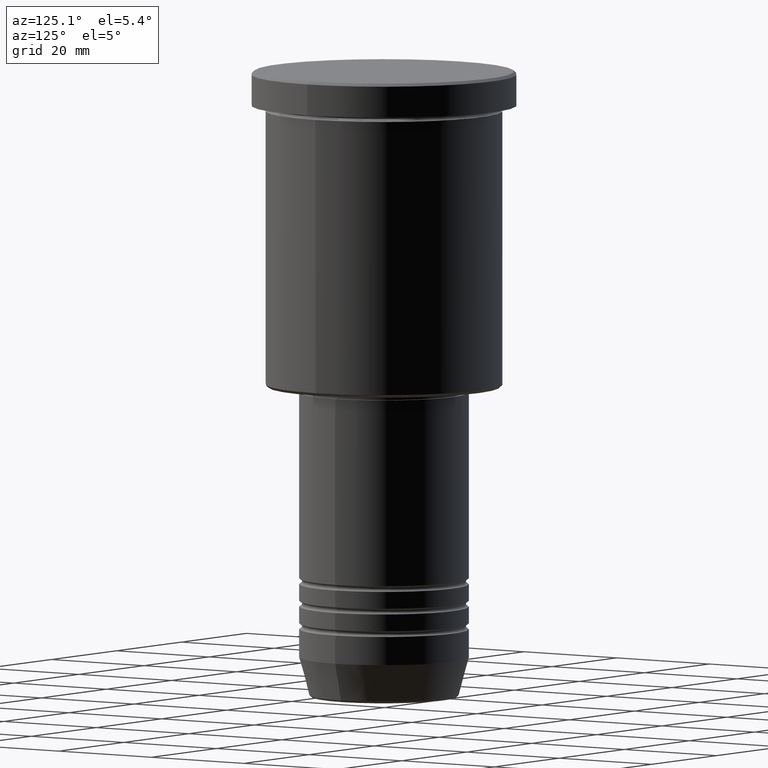
[diagram: clean part render]
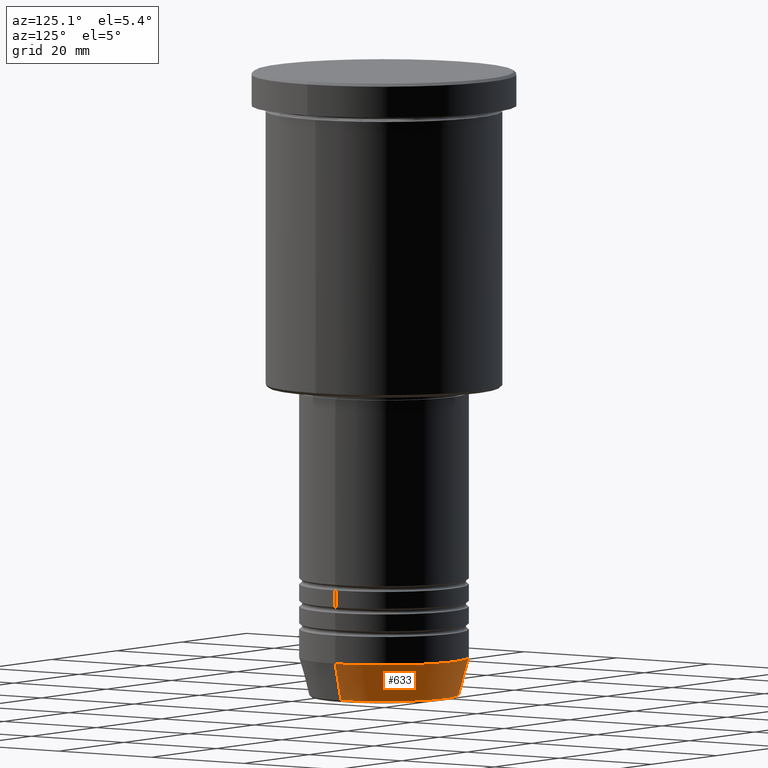
[diagram: same view with one face highlighted and labeled with its STEP entity id]
A machine part, auxiliary view. The second image highlights one B-rep face of the part: STEP entity #633.
In plain terms, the highlighted conical surface has half-angle 15 deg.
Its self-contained STEP definition (entity closure, byte-faithful):
#27 = CARTESIAN_POINT ( 'NONE',  ( -15.00000000000000000, 1.836970198721029589E-15, -104.0000000000000142 ) ) ;
#63 = ORIENTED_EDGE ( 'NONE', *, *, #138, .T. ) ;
#105 = CARTESIAN_POINT ( 'NONE',  ( 15.00000000000000000, 0.000000000000000000, -104.0000000000000142 ) ) ;
#131 = CIRCLE ( 'NONE', #652, 13.22365507213718594 ) ;
#133 = CONICAL_SURFACE ( 'NONE', #595, 15.00000000000000000, 0.2617993877991500740 ) ;
#138 = EDGE_CURVE ( 'NONE', #867, #1049, #131, .T. ) ;
#186 = EDGE_LOOP ( 'NONE', ( #63, #741, #914, #1044 ) ) ;
#187 = CARTESIAN_POINT ( 'NONE',  ( 0.000000000000000000, 0.000000000000000000, -104.0000000000000142 ) ) ;
#225 = CARTESIAN_POINT ( 'NONE',  ( 13.22365507213718594, 0.000000000000000000, -110.6294095225512706 ) ) ;
#294 = CARTESIAN_POINT ( 'NONE',  ( -15.00000000000000000, 1.836970198721029589E-15, -104.0000000000000142 ) ) ;
#327 = EDGE_CURVE ( 'NONE', #634, #863, #654, .T. ) ;
#334 = FACE_OUTER_BOUND ( 'NONE', #186, .T. ) ;
#349 = DIRECTION ( 'NONE',  ( 1.000000000000000000, 0.000000000000000000, 0.000000000000000000 ) ) ;
#353 = CARTESIAN_POINT ( 'NONE',  ( 0.000000000000000000, 0.000000000000000000, -104.0000000000000142 ) ) ;
#432 = CARTESIAN_POINT ( 'NONE',  ( 15.00000000000000000, 0.000000000000000000, -104.0000000000000142 ) ) ;
#440 = VECTOR ( 'NONE', #846, 1000.000000000000000 ) ;
#520 = DIRECTION ( 'NONE',  ( -0.000000000000000000, -0.000000000000000000, 1.000000000000000000 ) ) ;
#529 = LINE ( 'NONE', #105, #746 ) ;
#570 = DIRECTION ( 'NONE',  ( -0.000000000000000000, -0.000000000000000000, 1.000000000000000000 ) ) ;
#595 = AXIS2_PLACEMENT_3D ( 'NONE', #353, #705, #1071 ) ;
#633 = ADVANCED_FACE ( 'NONE', ( #334 ), #133, .T. ) ;
#634 = VERTEX_POINT ( 'NONE', #432 ) ;
#652 = AXIS2_PLACEMENT_3D ( 'NONE', #1066, #520, #957 ) ;
#654 = CIRCLE ( 'NONE', #897, 15.00000000000000000 ) ;
#678 = LINE ( 'NONE', #27, #440 ) ;
#705 = DIRECTION ( 'NONE',  ( -0.000000000000000000, -0.000000000000000000, 1.000000000000000000 ) ) ;
#741 = ORIENTED_EDGE ( 'NONE', *, *, #836, .T. ) ;
#746 = VECTOR ( 'NONE', #991, 1000.000000000000000 ) ;
#836 = EDGE_CURVE ( 'NONE', #1049, #863, #678, .T. ) ;
#846 = DIRECTION ( 'NONE',  ( -0.2588190451025213501, 3.169619151431772337E-17, 0.9659258262890680902 ) ) ;
#863 = VERTEX_POINT ( 'NONE', #294 ) ;
#867 = VERTEX_POINT ( 'NONE', #225 ) ;
#897 = AXIS2_PLACEMENT_3D ( 'NONE', #187, #570, #349 ) ;
#914 = ORIENTED_EDGE ( 'NONE', *, *, #327, .F. ) ;
#957 = DIRECTION ( 'NONE',  ( 1.000000000000000000, 0.000000000000000000, 0.000000000000000000 ) ) ;
#991 = DIRECTION ( 'NONE',  ( 0.2588190451025213501, 0.000000000000000000, 0.9659258262890680902 ) ) ;
#1044 = ORIENTED_EDGE ( 'NONE', *, *, #1110, .F. ) ;
#1049 = VERTEX_POINT ( 'NONE', #1069 ) ;
#1066 = CARTESIAN_POINT ( 'NONE',  ( 0.000000000000000000, 0.000000000000000000, -110.6294095225512706 ) ) ;
#1069 = CARTESIAN_POINT ( 'NONE',  ( -13.22365507213718594, 1.728200442216587992E-15, -110.6294095225512706 ) ) ;
#1071 = DIRECTION ( 'NONE',  ( 1.000000000000000000, 0.000000000000000000, 0.000000000000000000 ) ) ;
#1110 = EDGE_CURVE ( 'NONE', #867, #634, #529, .T. ) ;